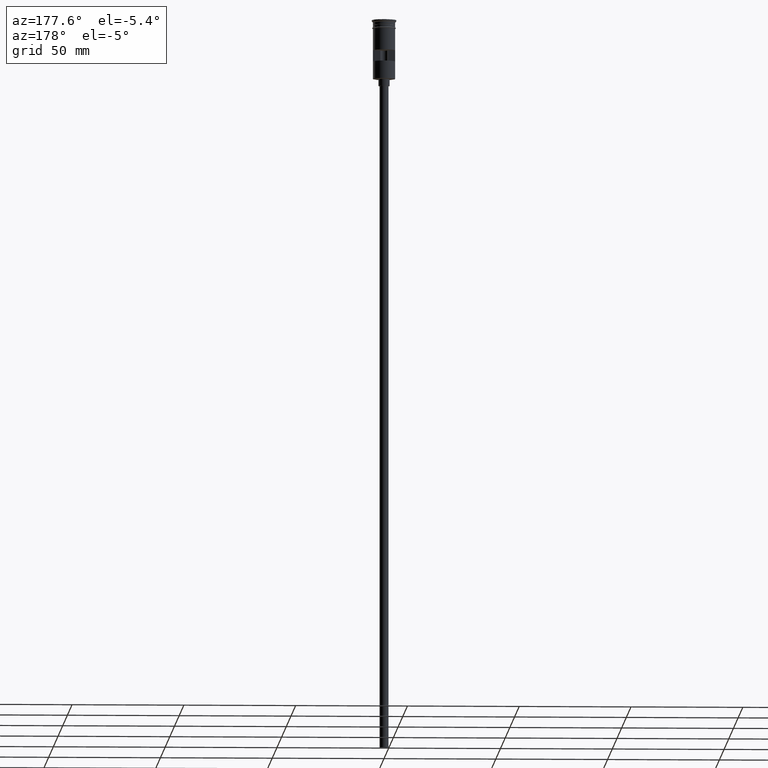
[diagram: clean part render]
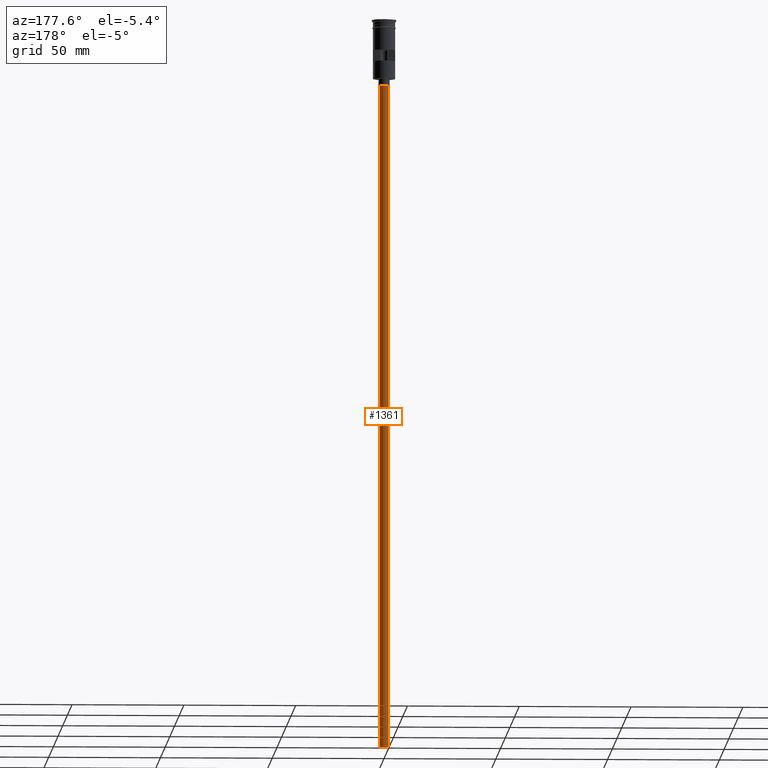
[diagram: same view with one face highlighted and labeled with its STEP entity id]
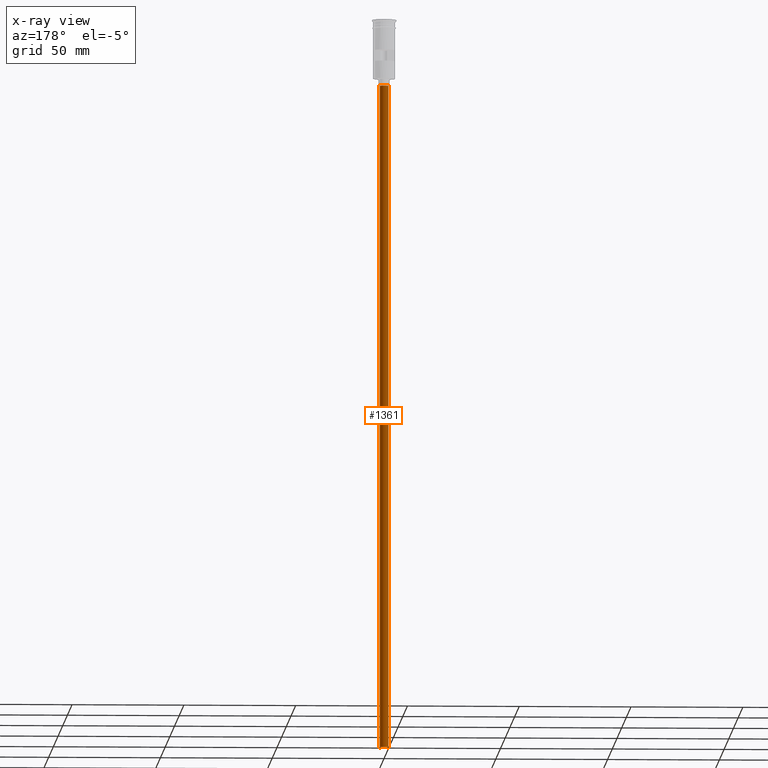
[diagram: x-ray of the same camera — body ghosted, the highlighted face saturated]
A machine part, auxiliary view. The second image highlights one B-rep face of the part: STEP entity #1361.
The next image is the same camera in x-ray: the body ghosted, the highlighted face saturated — about 0% of this face is hidden behind the body in this view.
In plain terms, the highlighted cylindrical surface (edge-blend (fillet) strip) has radius 2 mm, axis along (-0, -0, 1).
Its self-contained STEP definition (entity closure, byte-faithful):
#49 = DIRECTION ( 'NONE',  ( -1.000000000000000000, 0.000000000000000000, 0.000000000000000000 ) ) ;
#121 = CARTESIAN_POINT ( 'NONE',  ( 2.000000000000000000, 0.000000000000000000, -29.50000000000000000 ) ) ;
#134 = VECTOR ( 'NONE', #1232, 1000.000000000000000 ) ;
#142 = CARTESIAN_POINT ( 'NONE',  ( 0.000000000000000000, 0.000000000000000000, -326.5000000000000000 ) ) ;
#151 = ORIENTED_EDGE ( 'NONE', *, *, #950, .F. ) ;
#172 = EDGE_LOOP ( 'NONE', ( #360, #1105, #440, #151 ) ) ;
#209 = CIRCLE ( 'NONE', #796, 2.000000000000000000 ) ;
#243 = CARTESIAN_POINT ( 'NONE',  ( 2.000000000000000000, 0.000000000000000000, -326.5000000000000000 ) ) ;
#306 = CIRCLE ( 'NONE', #1144, 2.000000000000000000 ) ;
#307 = VERTEX_POINT ( 'NONE', #1166 ) ;
#360 = ORIENTED_EDGE ( 'NONE', *, *, #1159, .F. ) ;
#363 = LINE ( 'NONE', #479, #134 ) ;
#371 = FACE_OUTER_BOUND ( 'NONE', #172, .T. ) ;
#440 = ORIENTED_EDGE ( 'NONE', *, *, #1024, .T. ) ;
#465 = CYLINDRICAL_SURFACE ( 'NONE', #1091, 2.000000000000000000 ) ;
#479 = CARTESIAN_POINT ( 'NONE',  ( 2.000000000000000000, 0.000000000000000000, -326.5000000000000000 ) ) ;
#629 = VERTEX_POINT ( 'NONE', #243 ) ;
#695 = EDGE_CURVE ( 'NONE', #893, #307, #1043, .T. ) ;
#796 = AXIS2_PLACEMENT_3D ( 'NONE', #142, #1153, #49 ) ;
#893 = VERTEX_POINT ( 'NONE', #1442 ) ;
#911 = CARTESIAN_POINT ( 'NONE',  ( -2.000000000000000000, 2.449293598294706414E-16, -326.5000000000000000 ) ) ;
#950 = EDGE_CURVE ( 'NONE', #629, #998, #363, .T. ) ;
#998 = VERTEX_POINT ( 'NONE', #121 ) ;
#1024 = EDGE_CURVE ( 'NONE', #307, #998, #306, .T. ) ;
#1043 = LINE ( 'NONE', #911, #1506 ) ;
#1091 = AXIS2_PLACEMENT_3D ( 'NONE', #1092, #1103, #1589 ) ;
#1092 = CARTESIAN_POINT ( 'NONE',  ( 0.000000000000000000, 0.000000000000000000, -326.5000000000000000 ) ) ;
#1103 = DIRECTION ( 'NONE',  ( -0.000000000000000000, -0.000000000000000000, 1.000000000000000000 ) ) ;
#1105 = ORIENTED_EDGE ( 'NONE', *, *, #695, .T. ) ;
#1144 = AXIS2_PLACEMENT_3D ( 'NONE', #1237, #1590, #1343 ) ;
#1153 = DIRECTION ( 'NONE',  ( 0.000000000000000000, 0.000000000000000000, -1.000000000000000000 ) ) ;
#1159 = EDGE_CURVE ( 'NONE', #893, #629, #209, .T. ) ;
#1166 = CARTESIAN_POINT ( 'NONE',  ( -2.000000000000000000, 2.449293598294706414E-16, -29.50000000000000000 ) ) ;
#1232 = DIRECTION ( 'NONE',  ( -0.000000000000000000, -0.000000000000000000, 1.000000000000000000 ) ) ;
#1237 = CARTESIAN_POINT ( 'NONE',  ( 0.000000000000000000, 0.000000000000000000, -29.50000000000000000 ) ) ;
#1343 = DIRECTION ( 'NONE',  ( -1.000000000000000000, 0.000000000000000000, 0.000000000000000000 ) ) ;
#1361 = ADVANCED_FACE ( 'NONE', ( #371 ), #465, .T. ) ;
#1418 = DIRECTION ( 'NONE',  ( -0.000000000000000000, -0.000000000000000000, 1.000000000000000000 ) ) ;
#1442 = CARTESIAN_POINT ( 'NONE',  ( -2.000000000000000000, 2.449293598294706414E-16, -326.5000000000000000 ) ) ;
#1506 = VECTOR ( 'NONE', #1418, 1000.000000000000000 ) ;
#1589 = DIRECTION ( 'NONE',  ( 1.000000000000000000, 0.000000000000000000, 0.000000000000000000 ) ) ;
#1590 = DIRECTION ( 'NONE',  ( 0.000000000000000000, 0.000000000000000000, -1.000000000000000000 ) ) ;